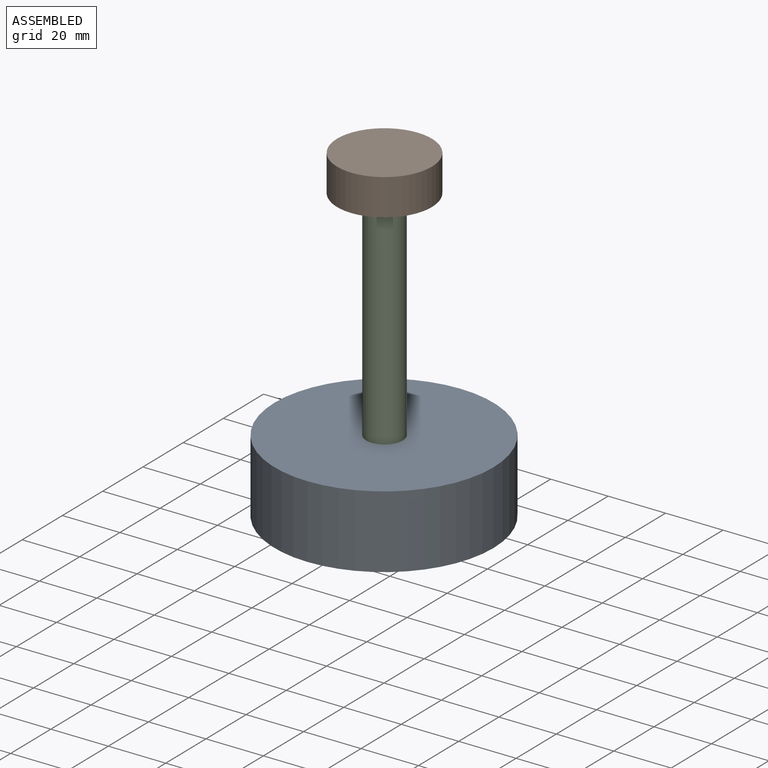
[diagram: assembled view]
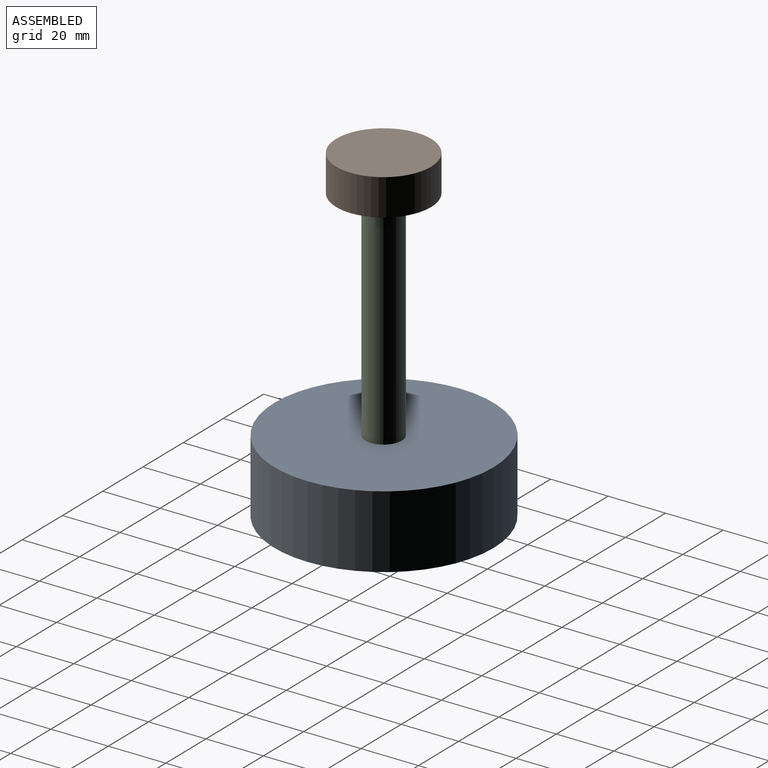
[diagram: assembled view, second angle]
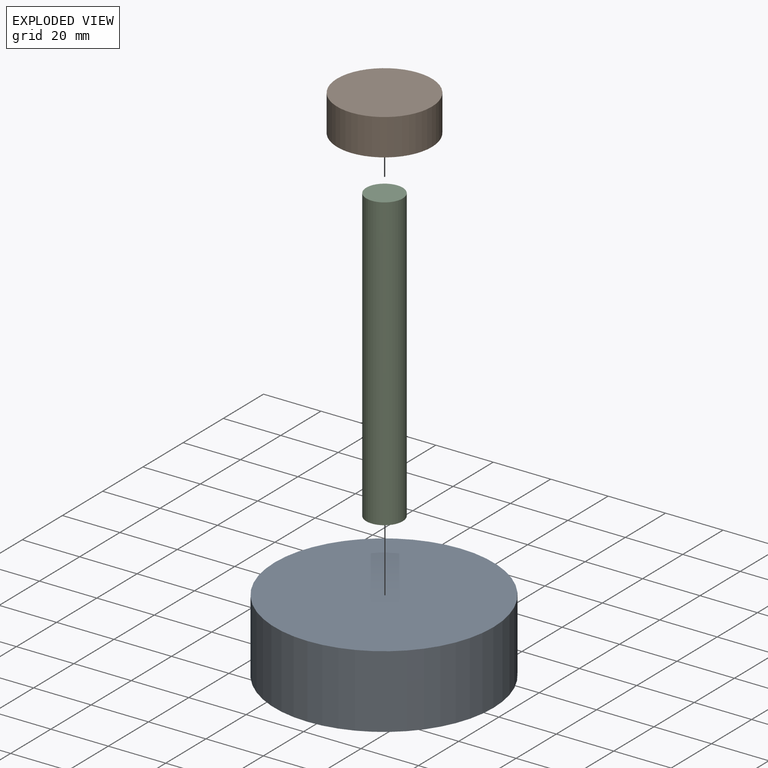
[diagram: exploded view]
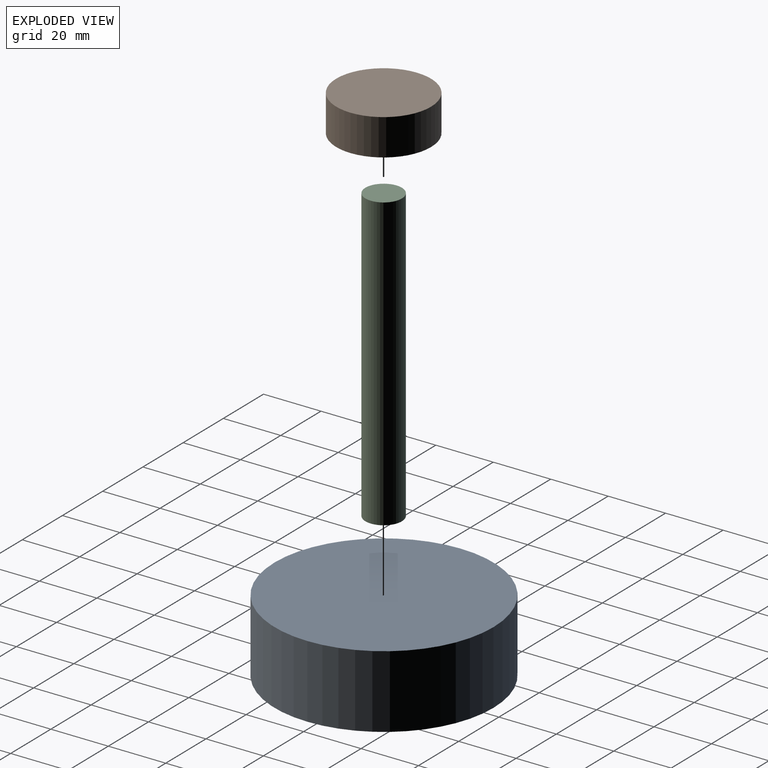
[diagram: exploded view, second angle]
ASSEMBLY  parts=3 mates=2
PART A: 5 faces, bbox 76.2x76.2x25.4 mm
  f0: cylinder r=38.1mm len=76.2mm, axis (0,0,-1), area 6080.5mm2, adj f1,f2
  f1: plane 76.2x76.2mm, normal (0,0,1), area 4560.4mm2, adj f0
  f2: plane 76.2x76.2mm, normal (0,0,-1), area 4433.7mm2, adj f0,f3
  f3: cylinder r=6.35mm len=12.7mm, axis (0,0,-1), area 506.7mm2, adj f2,f4
  f4: plane 12.7x12.7mm, normal (0,0,-1), area 126.7mm2, adj f3
PART B: 5 faces, bbox 33x33x12.7 mm
  f0: cylinder r=16.51mm len=33.02mm, axis (0,0,-1), area 1317.4mm2, adj f1,f2
  f1: plane 33.02x33.02mm, normal (0,0,1), area 856.3mm2, adj f0
  f2: plane 33.02x33.02mm, normal (0,0,-1), area 729.7mm2, adj f0,f3
  f3: cylinder r=6.35mm len=12.7mm, axis (0,0,-1), area 304mm2, adj f2,f4
  f4: plane 12.7x12.7mm, normal (0,0,-1), area 126.7mm2, adj f3
PART C: 3 faces, bbox 12.7x12.7x101.6 mm
  f0: cylinder r=6.35mm len=101.6mm, axis (0,0,-1), area 4053.7mm2, adj f1,f2
  f1: plane 12.7x12.7mm, normal (0,0,1), area 126.7mm2, adj f0
  f2: plane 12.7x12.7mm, normal (0,0,-1), area 126.7mm2, adj f0
PLACE A at identity
PLACE B t=(-47.51,-60.15,101.6)mm
PLACE C t=(-52.85,64.93,0)mm
MATE fastened B.f0 <-> C.f0  axis (0,0,-1) through (0.17,0,101.6)mm
MATE fastened C.f0 <-> A.f3  axis (0,0,-1) through (0.17,0,0)mm
